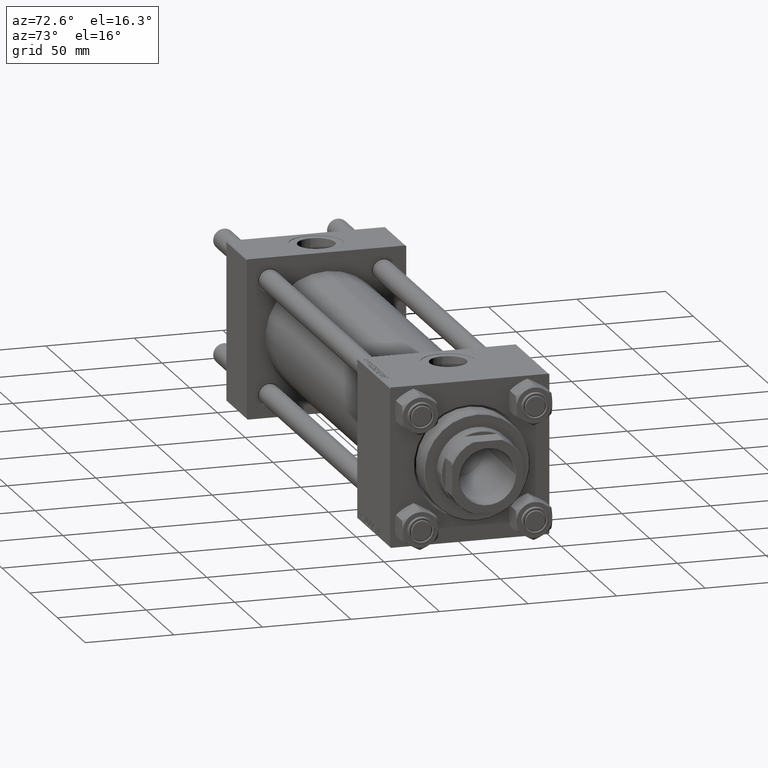
[diagram: clean part render]
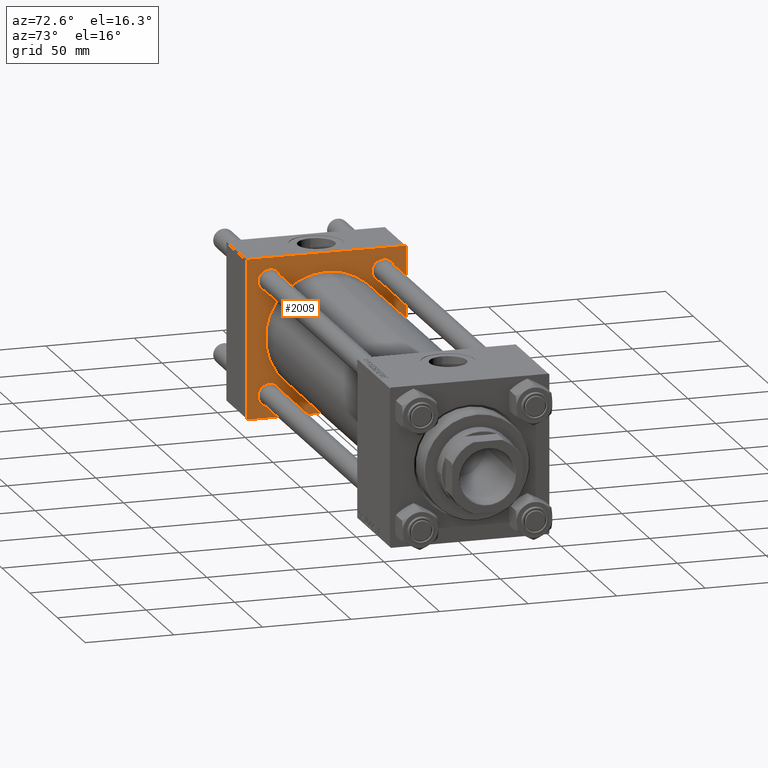
[diagram: same view with one face highlighted and labeled with its STEP entity id]
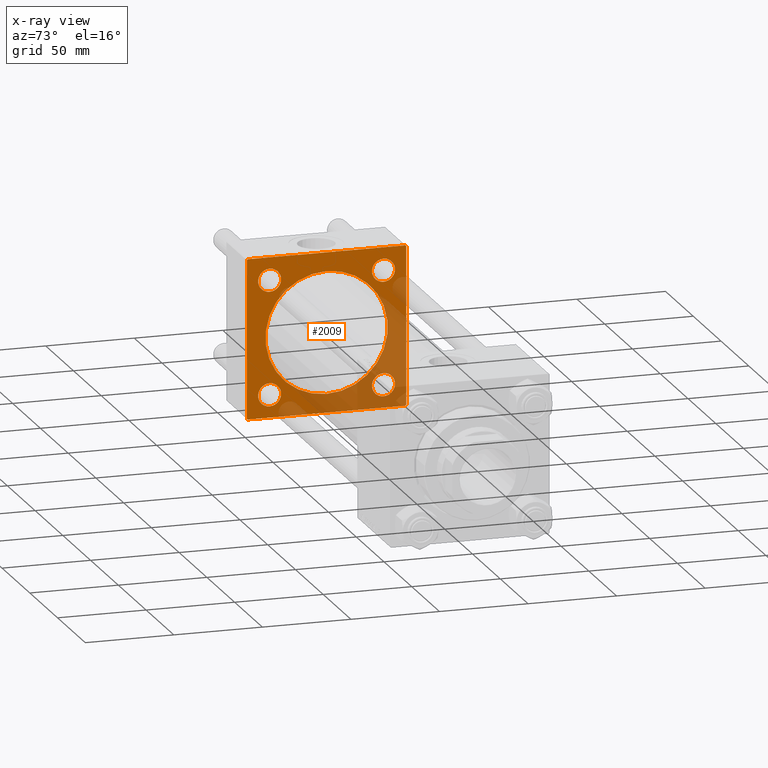
[diagram: x-ray of the same camera — body ghosted, the highlighted face saturated]
A machine part, auxiliary view. The second image highlights one B-rep face of the part: STEP entity #2009.
The next image is the same camera in x-ray: the body ghosted, the highlighted face saturated — about 36% of this face is hidden behind the body in this view.
In plain terms, the highlighted planar face has unit normal (-1, 0, 0).
Its self-contained STEP definition (entity closure, byte-faithful):
#35 = DIRECTION ( 'NONE',  ( 0.000000000000000000, 0.000000000000000000, 1.000000000000000000 ) ) ;
#284 = EDGE_CURVE ( 'NONE', #4222, #7206, #48927, .T. ) ;
#544 = EDGE_LOOP ( 'NONE', ( #30451, #9195 ) ) ;
#1162 = CARTESIAN_POINT ( 'NONE',  ( 37.00000000000000000, -45.00000000000000711, 44.49999999999997158 ) ) ;
#1356 = AXIS2_PLACEMENT_3D ( 'NONE', #45548, #11609, #35 ) ;
#1651 = DIRECTION ( 'NONE',  ( 0.000000000000000000, 0.000000000000000000, 1.000000000000000000 ) ) ;
#1814 = EDGE_CURVE ( 'NONE', #34573, #8064, #11281, .T. ) ;
#2009 = ADVANCED_FACE ( 'NONE', ( #9353, #24697, #24945, #40240, #5807, #44760 ), #36985, .F. ) ;
#2076 = VECTOR ( 'NONE', #43718, 1000.000000000000114 ) ;
#2080 = CARTESIAN_POINT ( 'NONE',  ( 37.00000000000000000, 44.99999999999998579, -44.49999999999998579 ) ) ;
#2164 = ORIENTED_EDGE ( 'NONE', *, *, #44932, .T. ) ;
#2483 = ORIENTED_EDGE ( 'NONE', *, *, #24363, .T. ) ;
#2528 = DIRECTION ( 'NONE',  ( -0.000000000000000000, 0.000000000000000000, 1.000000000000000000 ) ) ;
#2545 = VERTEX_POINT ( 'NONE', #1162 ) ;
#3509 = LINE ( 'NONE', #45731, #15755 ) ;
#3581 = ORIENTED_EDGE ( 'NONE', *, *, #41345, .F. ) ;
#3737 = CARTESIAN_POINT ( 'NONE',  ( 37.00000000000000000, 32.14999999999999147, 38.64999999999998437 ) ) ;
#4010 = DIRECTION ( 'NONE',  ( -1.000000000000000000, 0.000000000000000000, -0.000000000000000000 ) ) ;
#4222 = VERTEX_POINT ( 'NONE', #34944 ) ;
#4383 = ORIENTED_EDGE ( 'NONE', *, *, #30482, .T. ) ;
#4591 = CARTESIAN_POINT ( 'NONE',  ( 37.00000000000000000, -32.14999999999997726, 32.15000000000001279 ) ) ;
#4630 = CARTESIAN_POINT ( 'NONE',  ( 37.00000000000000000, 32.14999999999999147, 25.65000000000002700 ) ) ;
#4840 = CARTESIAN_POINT ( 'NONE',  ( 37.00000000000000000, 44.99999999999998579, 45.00000000000001421 ) ) ;
#5222 = EDGE_CURVE ( 'NONE', #42148, #14191, #33079, .T. ) ;
#5548 = EDGE_CURVE ( 'NONE', #14191, #42148, #37877, .T. ) ;
#5807 = FACE_BOUND ( 'NONE', #32182, .T. ) ;
#6115 = VECTOR ( 'NONE', #35535, 1000.000000000000000 ) ;
#6250 = CARTESIAN_POINT ( 'NONE',  ( 37.00000000000000000, -44.49999999999995737, -45.00000000000000000 ) ) ;
#6317 = DIRECTION ( 'NONE',  ( -1.000000000000000000, 0.000000000000000000, -0.000000000000000000 ) ) ;
#6381 = CARTESIAN_POINT ( 'NONE',  ( 37.00000000000000711, 4.225031457058367344E-15, -34.49999999999999289 ) ) ;
#6838 = AXIS2_PLACEMENT_3D ( 'NONE', #26100, #18043, #33635 ) ;
#6913 = VERTEX_POINT ( 'NONE', #31868 ) ;
#7206 = VERTEX_POINT ( 'NONE', #17755 ) ;
#7247 = DIRECTION ( 'NONE',  ( 0.000000000000000000, -1.000000000000000000, -1.541976423090495387E-16 ) ) ;
#7559 = VERTEX_POINT ( 'NONE', #19662 ) ;
#7641 = DIRECTION ( 'NONE',  ( 0.000000000000000000, 0.000000000000000000, 1.000000000000000000 ) ) ;
#8064 = VERTEX_POINT ( 'NONE', #4630 ) ;
#8191 = VECTOR ( 'NONE', #33144, 1000.000000000000114 ) ;
#8728 = ORIENTED_EDGE ( 'NONE', *, *, #13471, .T. ) ;
#8745 = ORIENTED_EDGE ( 'NONE', *, *, #5222, .T. ) ;
#9053 = VERTEX_POINT ( 'NONE', #18952 ) ;
#9195 = ORIENTED_EDGE ( 'NONE', *, *, #1814, .T. ) ;
#9329 = DIRECTION ( 'NONE',  ( 0.000000000000000000, 0.000000000000000000, 1.000000000000000000 ) ) ;
#9353 = FACE_BOUND ( 'NONE', #27536, .T. ) ;
#9760 = AXIS2_PLACEMENT_3D ( 'NONE', #38464, #4010, #34703 ) ;
#10422 = CARTESIAN_POINT ( 'NONE',  ( 37.00000000000000000, -32.14999999999997726, 32.15000000000001279 ) ) ;
#10518 = EDGE_CURVE ( 'NONE', #9053, #36449, #41673, .T. ) ;
#10669 = DIRECTION ( 'NONE',  ( 0.000000000000000000, 0.000000000000000000, 1.000000000000000000 ) ) ;
#10921 = CARTESIAN_POINT ( 'NONE',  ( 37.00000000000000000, -45.00000000000000711, 45.00000000000000000 ) ) ;
#11079 = DIRECTION ( 'NONE',  ( 0.000000000000000000, -1.000000000000000000, -1.541976423090495633E-16 ) ) ;
#11154 = CARTESIAN_POINT ( 'NONE',  ( 37.00000000000000000, -45.00000000000000000, -44.49999999999995737 ) ) ;
#11281 = CIRCLE ( 'NONE', #23309, 6.499999999999977796 ) ;
#11609 = DIRECTION ( 'NONE',  ( 1.000000000000000000, -0.000000000000000000, 0.000000000000000000 ) ) ;
#11716 = ORIENTED_EDGE ( 'NONE', *, *, #5548, .T. ) ;
#12044 = DIRECTION ( 'NONE',  ( 0.000000000000000000, 0.000000000000000000, 1.000000000000000000 ) ) ;
#13261 = EDGE_LOOP ( 'NONE', ( #18148, #2483 ) ) ;
#13471 = EDGE_CURVE ( 'NONE', #36449, #2545, #33942, .T. ) ;
#13957 = LINE ( 'NONE', #10921, #22188 ) ;
#14191 = VERTEX_POINT ( 'NONE', #49739 ) ;
#14506 = VERTEX_POINT ( 'NONE', #6250 ) ;
#14833 = DIRECTION ( 'NONE',  ( -0.000000000000000000, -0.7071067811865425767, -0.7071067811865524577 ) ) ;
#14836 = CARTESIAN_POINT ( 'NONE',  ( 37.00000000000000711, 0.000000000000000000, 34.49999999999999289 ) ) ;
#15755 = VECTOR ( 'NONE', #11079, 1000.000000000000000 ) ;
#16332 = ORIENTED_EDGE ( 'NONE', *, *, #16991, .F. ) ;
#16525 = VERTEX_POINT ( 'NONE', #40963 ) ;
#16675 = DIRECTION ( 'NONE',  ( -1.000000000000000000, 0.000000000000000000, -0.000000000000000000 ) ) ;
#16991 = EDGE_CURVE ( 'NONE', #18631, #27403, #42113, .T. ) ;
#17755 = CARTESIAN_POINT ( 'NONE',  ( 37.00000000000000000, -32.14999999999997726, 25.65000000000003411 ) ) ;
#17997 = ORIENTED_EDGE ( 'NONE', *, *, #33267, .T. ) ;
#18043 = DIRECTION ( 'NONE',  ( 1.000000000000000000, -0.000000000000000000, 0.000000000000000000 ) ) ;
#18148 = ORIENTED_EDGE ( 'NONE', *, *, #36319, .T. ) ;
#18170 = AXIS2_PLACEMENT_3D ( 'NONE', #22001, #37317, #40324 ) ;
#18239 = CARTESIAN_POINT ( 'NONE',  ( 37.00000000000000000, -44.49999999999995737, 45.00000000000000000 ) ) ;
#18606 = AXIS2_PLACEMENT_3D ( 'NONE', #39423, #31405, #12044 ) ;
#18631 = VERTEX_POINT ( 'NONE', #14836 ) ;
#18770 = EDGE_LOOP ( 'NONE', ( #19278, #25477, #3581, #2164, #25038, #8728, #42137, #4383 ) ) ;
#18949 = DIRECTION ( 'NONE',  ( -1.000000000000000000, 0.000000000000000000, -0.000000000000000000 ) ) ;
#18952 = CARTESIAN_POINT ( 'NONE',  ( 37.00000000000000000, 44.49999999999998579, 45.00000000000001421 ) ) ;
#19278 = ORIENTED_EDGE ( 'NONE', *, *, #42560, .F. ) ;
#19662 = CARTESIAN_POINT ( 'NONE',  ( 37.00000000000000000, 32.14999999999999147, -38.65000000000006963 ) ) ;
#19945 = DIRECTION ( 'NONE',  ( 0.000000000000000000, 0.000000000000000000, 1.000000000000000000 ) ) ;
#20104 = CARTESIAN_POINT ( 'NONE',  ( 37.00000000000000000, 44.49999999999998579, 45.00000000000001421 ) ) ;
#20801 = VERTEX_POINT ( 'NONE', #35872 ) ;
#20861 = LINE ( 'NONE', #20104, #2076 ) ;
#21300 = VERTEX_POINT ( 'NONE', #11154 ) ;
#22001 = CARTESIAN_POINT ( 'NONE',  ( 37.00000000000000000, 32.14999999999999147, -32.15000000000000568 ) ) ;
#22188 = VECTOR ( 'NONE', #41578, 1000.000000000000000 ) ;
#23061 = CIRCLE ( 'NONE', #1356, 34.49999999999999289 ) ;
#23309 = AXIS2_PLACEMENT_3D ( 'NONE', #32195, #28445, #9329 ) ;
#23640 = CIRCLE ( 'NONE', #46888, 6.500000000000061284 ) ;
#24363 = EDGE_CURVE ( 'NONE', #49570, #7559, #39819, .T. ) ;
#24697 = FACE_BOUND ( 'NONE', #13261, .T. ) ;
#24945 = FACE_BOUND ( 'NONE', #25509, .T. ) ;
#25015 = CIRCLE ( 'NONE', #9760, 6.499999999999977796 ) ;
#25038 = ORIENTED_EDGE ( 'NONE', *, *, #10518, .T. ) ;
#25288 = ORIENTED_EDGE ( 'NONE', *, *, #47306, .F. ) ;
#25477 = ORIENTED_EDGE ( 'NONE', *, *, #30767, .T. ) ;
#25509 = EDGE_LOOP ( 'NONE', ( #17997, #33969 ) ) ;
#25942 = CARTESIAN_POINT ( 'NONE',  ( 37.00000000000000000, 0.000000000000000000, 0.000000000000000000 ) ) ;
#26100 = CARTESIAN_POINT ( 'NONE',  ( 37.00000000000000711, 0.000000000000000000, 0.000000000000000000 ) ) ;
#26484 = CARTESIAN_POINT ( 'NONE',  ( 37.00000000000000000, -32.14999999999997726, -25.65000000000003411 ) ) ;
#26770 = DIRECTION ( 'NONE',  ( -1.000000000000000000, 0.000000000000000000, -0.000000000000000000 ) ) ;
#27403 = VERTEX_POINT ( 'NONE', #6381 ) ;
#27536 = EDGE_LOOP ( 'NONE', ( #11716, #8745 ) ) ;
#28445 = DIRECTION ( 'NONE',  ( -1.000000000000000000, 0.000000000000000000, -0.000000000000000000 ) ) ;
#29010 = DIRECTION ( 'NONE',  ( -0.000000000000000000, 0.7071067811865474617, 0.7071067811865474617 ) ) ;
#29188 = CIRCLE ( 'NONE', #29973, 6.499999999999977796 ) ;
#29219 = EDGE_CURVE ( 'NONE', #8064, #34573, #25015, .T. ) ;
#29973 = AXIS2_PLACEMENT_3D ( 'NONE', #4591, #16675, #19945 ) ;
#30451 = ORIENTED_EDGE ( 'NONE', *, *, #29219, .T. ) ;
#30482 = EDGE_CURVE ( 'NONE', #21300, #14506, #47445, .T. ) ;
#30657 = AXIS2_PLACEMENT_3D ( 'NONE', #44636, #36104, #1651 ) ;
#30767 = EDGE_CURVE ( 'NONE', #16525, #20801, #41039, .T. ) ;
#31405 = DIRECTION ( 'NONE',  ( -1.000000000000000000, 0.000000000000000000, -0.000000000000000000 ) ) ;
#31868 = CARTESIAN_POINT ( 'NONE',  ( 37.00000000000000000, 44.99999999999998579, 44.50000000000001421 ) ) ;
#32182 = EDGE_LOOP ( 'NONE', ( #16332, #25288 ) ) ;
#32195 = CARTESIAN_POINT ( 'NONE',  ( 37.00000000000000000, 32.14999999999999147, 32.15000000000000568 ) ) ;
#32394 = VECTOR ( 'NONE', #14833, 1000.000000000000114 ) ;
#33079 = CIRCLE ( 'NONE', #18606, 6.499999999999977796 ) ;
#33144 = DIRECTION ( 'NONE',  ( 0.000000000000000000, 0.7071067811865474617, -0.7071067811865474617 ) ) ;
#33267 = EDGE_CURVE ( 'NONE', #7206, #4222, #29188, .T. ) ;
#33635 = DIRECTION ( 'NONE',  ( 0.000000000000000000, 0.000000000000000000, 1.000000000000000000 ) ) ;
#33942 = LINE ( 'NONE', #49257, #32394 ) ;
#33969 = ORIENTED_EDGE ( 'NONE', *, *, #284, .T. ) ;
#34573 = VERTEX_POINT ( 'NONE', #3737 ) ;
#34703 = DIRECTION ( 'NONE',  ( 0.000000000000000000, 0.000000000000000000, 1.000000000000000000 ) ) ;
#34944 = CARTESIAN_POINT ( 'NONE',  ( 37.00000000000000000, -32.14999999999997726, 38.64999999999999147 ) ) ;
#35535 = DIRECTION ( 'NONE',  ( 0.000000000000000000, 0.000000000000000000, -1.000000000000000000 ) ) ;
#35872 = CARTESIAN_POINT ( 'NONE',  ( 37.00000000000000000, 44.99999999999998579, -44.49999999999995737 ) ) ;
#36104 = DIRECTION ( 'NONE',  ( -1.000000000000000000, 0.000000000000000000, -0.000000000000000000 ) ) ;
#36151 = CARTESIAN_POINT ( 'NONE',  ( 37.00000000000000000, -44.49999999999998579, -45.00000000000000000 ) ) ;
#36277 = VECTOR ( 'NONE', #7247, 1000.000000000000000 ) ;
#36319 = EDGE_CURVE ( 'NONE', #7559, #49570, #23640, .T. ) ;
#36449 = VERTEX_POINT ( 'NONE', #18239 ) ;
#36916 = AXIS2_PLACEMENT_3D ( 'NONE', #10422, #18949, #10669 ) ;
#36985 = PLANE ( 'NONE',  #40158 ) ;
#37113 = CARTESIAN_POINT ( 'NONE',  ( 37.00000000000000000, 32.14999999999999147, -25.64999999999994529 ) ) ;
#37317 = DIRECTION ( 'NONE',  ( -1.000000000000000000, 0.000000000000000000, -0.000000000000000000 ) ) ;
#37877 = CIRCLE ( 'NONE', #30657, 6.499999999999977796 ) ;
#38464 = CARTESIAN_POINT ( 'NONE',  ( 37.00000000000000000, 32.14999999999999147, 32.15000000000000568 ) ) ;
#39296 = LINE ( 'NONE', #4840, #6115 ) ;
#39423 = CARTESIAN_POINT ( 'NONE',  ( 37.00000000000000000, -32.14999999999997726, -32.15000000000001279 ) ) ;
#39819 = CIRCLE ( 'NONE', #18170, 6.500000000000061284 ) ;
#40158 = AXIS2_PLACEMENT_3D ( 'NONE', #25942, #6317, #2528 ) ;
#40240 = FACE_BOUND ( 'NONE', #544, .T. ) ;
#40324 = DIRECTION ( 'NONE',  ( 0.000000000000000000, 0.000000000000000000, 1.000000000000000000 ) ) ;
#40963 = CARTESIAN_POINT ( 'NONE',  ( 37.00000000000000000, 44.49999999999998579, -44.99999999999998579 ) ) ;
#41039 = LINE ( 'NONE', #2080, #42684 ) ;
#41345 = EDGE_CURVE ( 'NONE', #6913, #20801, #39296, .T. ) ;
#41578 = DIRECTION ( 'NONE',  ( 0.000000000000000000, 7.709882115452476934E-17, -1.000000000000000000 ) ) ;
#41673 = LINE ( 'NONE', #48970, #36277 ) ;
#42113 = CIRCLE ( 'NONE', #6838, 34.49999999999999289 ) ;
#42137 = ORIENTED_EDGE ( 'NONE', *, *, #45407, .T. ) ;
#42148 = VERTEX_POINT ( 'NONE', #26484 ) ;
#42560 = EDGE_CURVE ( 'NONE', #16525, #14506, #3509, .T. ) ;
#42684 = VECTOR ( 'NONE', #29010, 1000.000000000000114 ) ;
#43718 = DIRECTION ( 'NONE',  ( 0.000000000000000000, -0.7071067811865474617, 0.7071067811865474617 ) ) ;
#44636 = CARTESIAN_POINT ( 'NONE',  ( 37.00000000000000000, -32.14999999999997726, -32.15000000000001279 ) ) ;
#44760 = FACE_OUTER_BOUND ( 'NONE', #18770, .T. ) ;
#44932 = EDGE_CURVE ( 'NONE', #6913, #9053, #20861, .T. ) ;
#45350 = CARTESIAN_POINT ( 'NONE',  ( 37.00000000000000000, 32.14999999999999147, -32.15000000000000568 ) ) ;
#45407 = EDGE_CURVE ( 'NONE', #2545, #21300, #13957, .T. ) ;
#45548 = CARTESIAN_POINT ( 'NONE',  ( 37.00000000000000711, 0.000000000000000000, 0.000000000000000000 ) ) ;
#45731 = CARTESIAN_POINT ( 'NONE',  ( 37.00000000000000000, 44.99999999999998579, -44.99999999999998579 ) ) ;
#46888 = AXIS2_PLACEMENT_3D ( 'NONE', #45350, #26770, #7641 ) ;
#47306 = EDGE_CURVE ( 'NONE', #27403, #18631, #23061, .T. ) ;
#47445 = LINE ( 'NONE', #36151, #8191 ) ;
#48927 = CIRCLE ( 'NONE', #36916, 6.499999999999977796 ) ;
#48970 = CARTESIAN_POINT ( 'NONE',  ( 37.00000000000000000, 44.99999999999998579, 45.00000000000001421 ) ) ;
#49257 = CARTESIAN_POINT ( 'NONE',  ( 37.00000000000000000, -45.00000000000000711, 44.49999999999997158 ) ) ;
#49570 = VERTEX_POINT ( 'NONE', #37113 ) ;
#49739 = CARTESIAN_POINT ( 'NONE',  ( 37.00000000000000000, -32.14999999999997726, -38.64999999999999147 ) ) ;